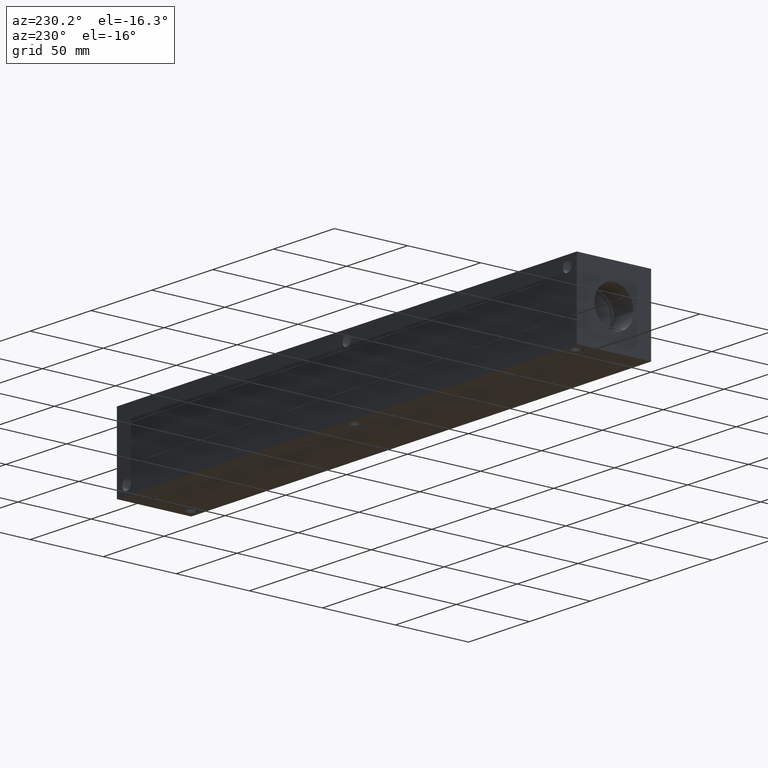
[diagram: clean part render]
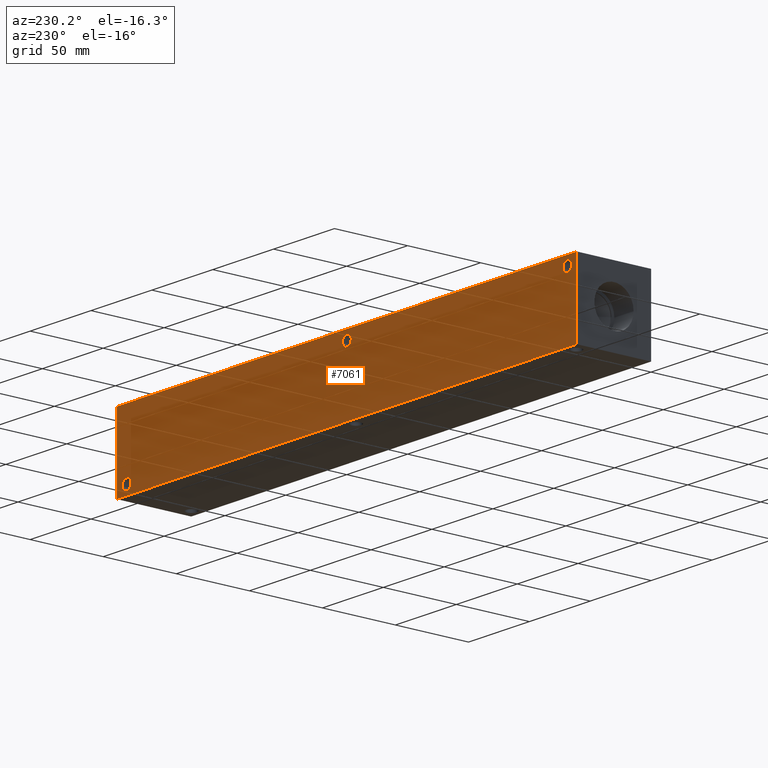
[diagram: same view with one face highlighted and labeled with its STEP entity id]
A machine part, auxiliary view. The second image highlights one B-rep face of the part: STEP entity #7061.
In plain terms, the highlighted planar face has unit normal (0, 1, 0).
Its self-contained STEP definition (entity closure, byte-faithful):
#82=CIRCLE('',#7302,3.5687);
#85=CIRCLE('',#7312,3.5687);
#88=CIRCLE('',#7321,3.5687);
#185=FACE_BOUND('',#1170,.T.);
#186=FACE_BOUND('',#1171,.T.);
#187=FACE_BOUND('',#1172,.T.);
#400=PLANE('',#7407);
#760=FACE_OUTER_BOUND('',#1169,.T.);
#1169=EDGE_LOOP('',(#6260,#6261,#6262,#6263));
#1170=EDGE_LOOP('',(#6264));
#1171=EDGE_LOOP('',(#6265));
#1172=EDGE_LOOP('',(#6266));
#1418=LINE('',#11019,#2075);
#1835=LINE('',#12190,#2492);
#1836=LINE('',#12193,#2493);
#1837=LINE('',#12194,#2494);
#2075=VECTOR('',#7754,10.);
#2492=VECTOR('',#8719,10.);
#2493=VECTOR('',#8722,10.);
#2494=VECTOR('',#8723,10.);
#3024=VERTEX_POINT('',#11016);
#3025=VERTEX_POINT('',#11018);
#3310=VERTEX_POINT('',#11980);
#3315=VERTEX_POINT('',#11998);
#3320=VERTEX_POINT('',#12014);
#3376=VERTEX_POINT('',#12186);
#3378=VERTEX_POINT('',#12192);
#3826=EDGE_CURVE('',#3024,#3025,#1418,.T.);
#4247=EDGE_CURVE('',#3310,#3310,#82,.T.);
#4257=EDGE_CURVE('',#3315,#3315,#85,.T.);
#4266=EDGE_CURVE('',#3320,#3320,#88,.T.);
#4345=EDGE_CURVE('',#3376,#3025,#1835,.T.);
#4346=EDGE_CURVE('',#3378,#3376,#1836,.T.);
#4347=EDGE_CURVE('',#3378,#3024,#1837,.T.);
#6260=ORIENTED_EDGE('',*,*,#4346,.T.);
#6261=ORIENTED_EDGE('',*,*,#4345,.T.);
#6262=ORIENTED_EDGE('',*,*,#3826,.F.);
#6263=ORIENTED_EDGE('',*,*,#4347,.F.);
#6264=ORIENTED_EDGE('',*,*,#4247,.T.);
#6265=ORIENTED_EDGE('',*,*,#4257,.T.);
#6266=ORIENTED_EDGE('',*,*,#4266,.T.);
#7061=ADVANCED_FACE('',(#760,#185,#186,#187),#400,.T.);
#7302=AXIS2_PLACEMENT_3D('',#11982,#8473,#8474);
#7312=AXIS2_PLACEMENT_3D('',#12000,#8496,#8497);
#7321=AXIS2_PLACEMENT_3D('',#12016,#8516,#8517);
#7407=AXIS2_PLACEMENT_3D('',#12191,#8720,#8721);
#7754=DIRECTION('',(-1.,0.,0.));
#8473=DIRECTION('center_axis',(0.,-1.,0.));
#8474=DIRECTION('ref_axis',(1.,0.,0.));
#8496=DIRECTION('center_axis',(0.,-1.,0.));
#8497=DIRECTION('ref_axis',(1.,0.,0.));
#8516=DIRECTION('center_axis',(0.,-1.,0.));
#8517=DIRECTION('ref_axis',(1.,0.,0.));
#8719=DIRECTION('',(0.,0.,1.));
#8720=DIRECTION('center_axis',(0.,1.,0.));
#8721=DIRECTION('ref_axis',(-1.,0.,0.));
#8722=DIRECTION('',(-1.,0.,0.));
#8723=DIRECTION('',(0.,0.,1.));
#11016=CARTESIAN_POINT('',(377.825,50.8,50.8));
#11018=CARTESIAN_POINT('',(0.,50.8,50.8));
#11019=CARTESIAN_POINT('',(377.825,50.8,50.8));
#11980=CARTESIAN_POINT('',(366.3061,50.8,6.35));
#11982=CARTESIAN_POINT('Origin',(369.8748,50.8,6.35));
#11998=CARTESIAN_POINT('',(4.3561,50.8,44.45));
#12000=CARTESIAN_POINT('Origin',(7.9248,50.8,44.45));
#12014=CARTESIAN_POINT('',(185.3565,50.8,44.45));
#12016=CARTESIAN_POINT('Origin',(188.9252,50.8,44.45));
#12186=CARTESIAN_POINT('',(0.,50.8,0.));
#12190=CARTESIAN_POINT('',(0.,50.8,0.));
#12191=CARTESIAN_POINT('Origin',(377.825,50.8,0.));
#12192=CARTESIAN_POINT('',(377.825,50.8,0.));
#12193=CARTESIAN_POINT('',(377.825,50.8,0.));
#12194=CARTESIAN_POINT('',(377.825,50.8,0.));